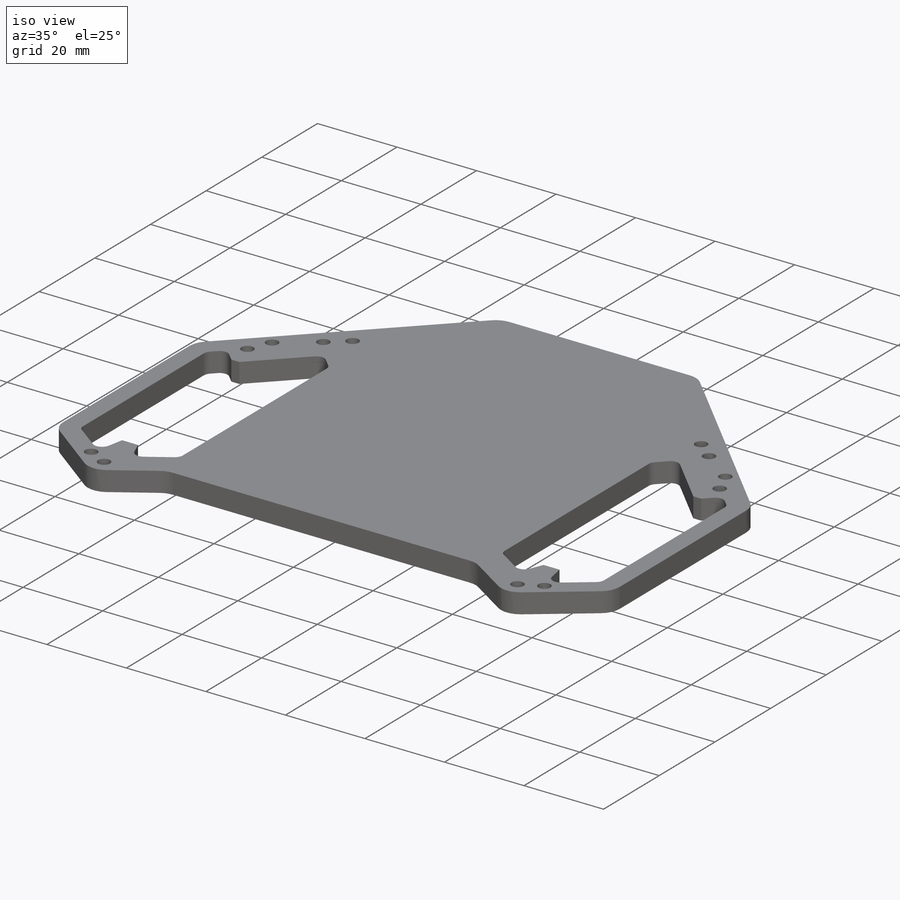
[diagram: iso view]
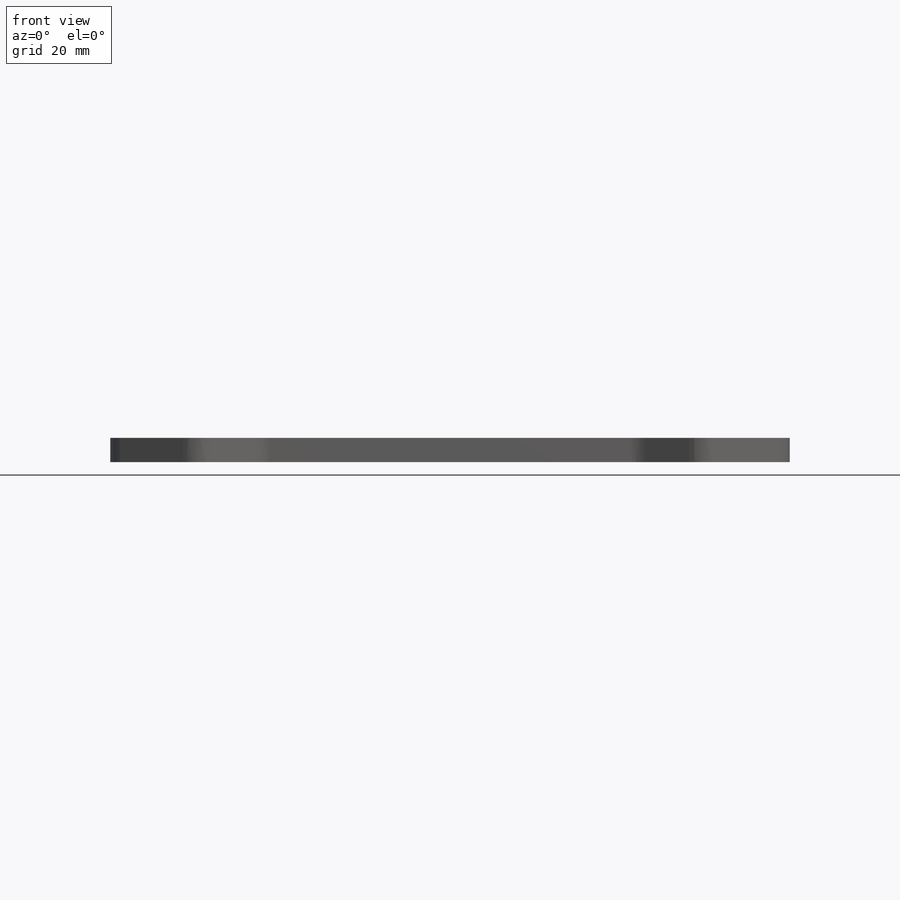
[diagram: front view]
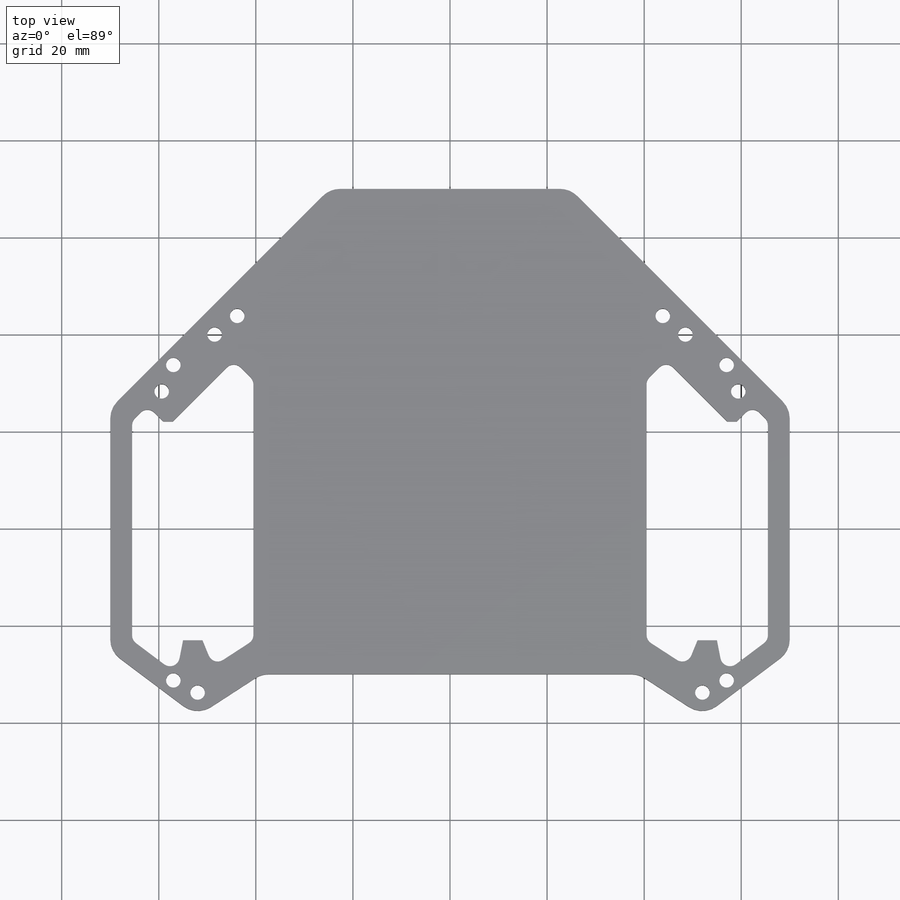
[diagram: top view]
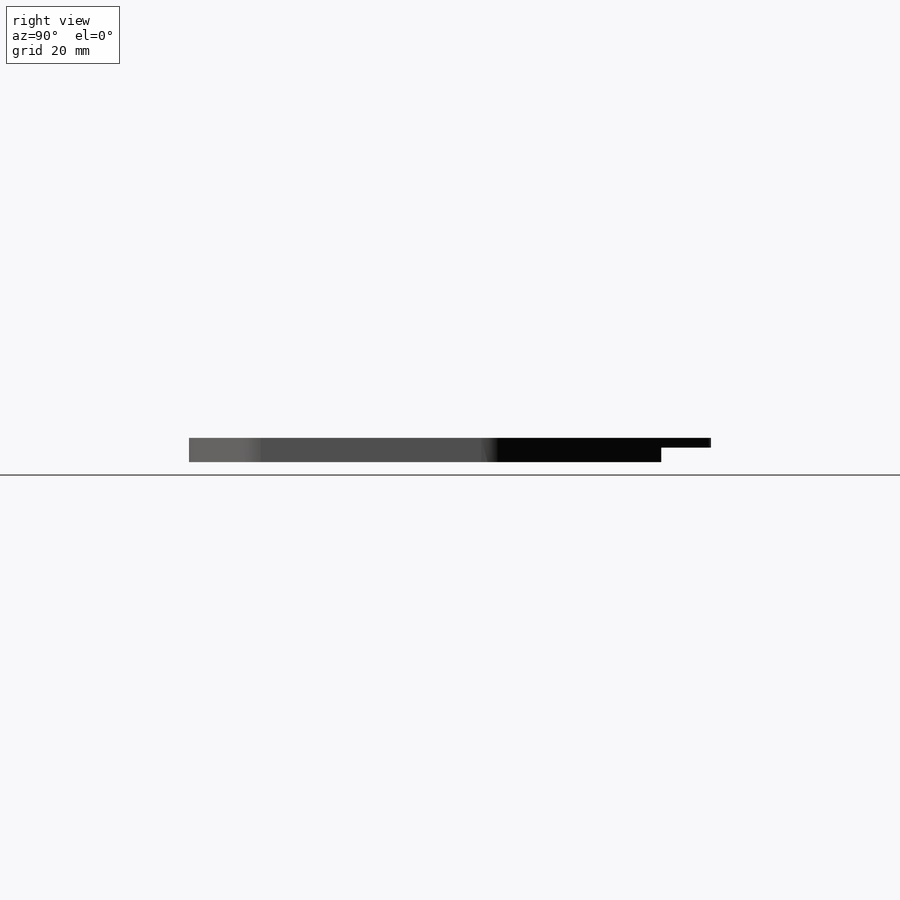
[diagram: right view]
SOLIDWORKS PART (.sldprt)
format: sldprt  version: not decoded by parser v0  size: 321,024 bytes
history: native  units: mm
features: sketch x2, fillet x2, material x1, extrude x1, mirror x1, cut_extrude x1 (+11 scaffold rows collapsed)
feature tree (19):
  scaffold x11  (default folders/planes/origin — collapsed)
  material  "Material <not specified>"
  sketch  "Sketch1"  dims[c1.D1=85.0mm c1.D7=3.0mm c1.D17=170.0mm c1.D20=3.0mm c1.D2=8.0mm c1.D3=~18.903072mm c2.D3=45.0deg c2.D4=~29.593338mm c3.D4=31.0deg c3.D5=24.0mm c3.D6=24.0mm c3.D8=6.0mm c3.D9=22.0mm c3.D3=4.0mm c4.D4=4.0mm c4.D10=22.0mm c4.D11=6.0mm c4.D12=4.0mm c4.D13=4.0mm c4.D14=~56.370009mm c5.D14=45.0deg c5.D15=~48.552556mm c6.D15=33.0deg c6.D16=66.0mm c6.D2=4.0mm c6.D3=4.0mm c6.D4=60.0mm c6.D5=30.0mm c6.D6=70.0mm c6.D8=62.0mm c6.D11=25.0mm c6.D12=45.1mm c6.D13=30.0mm c7.D16=23.0mm c7.D18=17.5mm c7.D4=25.0mm c8.D18=80.0mm c8.D19=20.0mm c8.D6=70.0mm c8.D13=38.2mm c8.D2=22.0mm c8.D4=20.0mm c9.D18=5.0mm c9.D19=70.0mm c9.D2=30.0mm c9.D4=4.0mm c9.D3=2.0mm c9.D5=2.0mm c9.D13=53.0mm c10.D3=4.0mm c10.D5=4.5mm c10.D20=12.5mm c10.D21=5.0mm c10.D22=5.0mm c10.D23=4.0mm c10.D24=6.0mm c10.D25=15.0mm c10.D26=67.0mm c10.D27=5.0mm c10.D28=3.0mm c11.D26=65.0mm c11.D29=50.0mm c11.D30=~28.826497mm c12.D30=90.0deg c13.D30=30.0mm c13.D31=15.0mm c13.D32=80.0mm c13.D33=76.0mm c13.D34=2.0mm c13.D35=40.0mm c13.D36=~6.038227mm]
  extrude  "Boss-Extrude1"  Depth=5mm
  fillet  "Fillet1"  Radius=2mm
  mirror  "Mirror1"
  sketch  "Sketch2"  dims[D1=3.0mm D2=70.0mm D3=35.0mm]
  cut_extrude  "Cut-Extrude1"  Depth=3mm
  fillet  "Fillet2"  Radius=5mm
decode coverage: 6 of 7 modeling features carry decoded parameters
note: ~ marks probable driven/reference dimensions
note: suppression state not decoded; provenance and decode notes live in map.json
